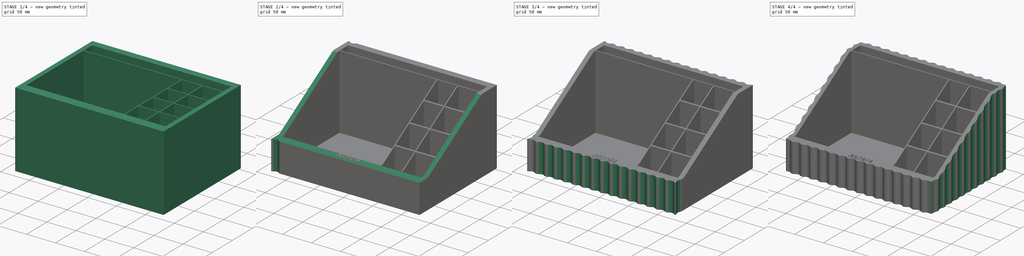
[diagram: build sequence overview — one tinted view per stage of 4, left to right]
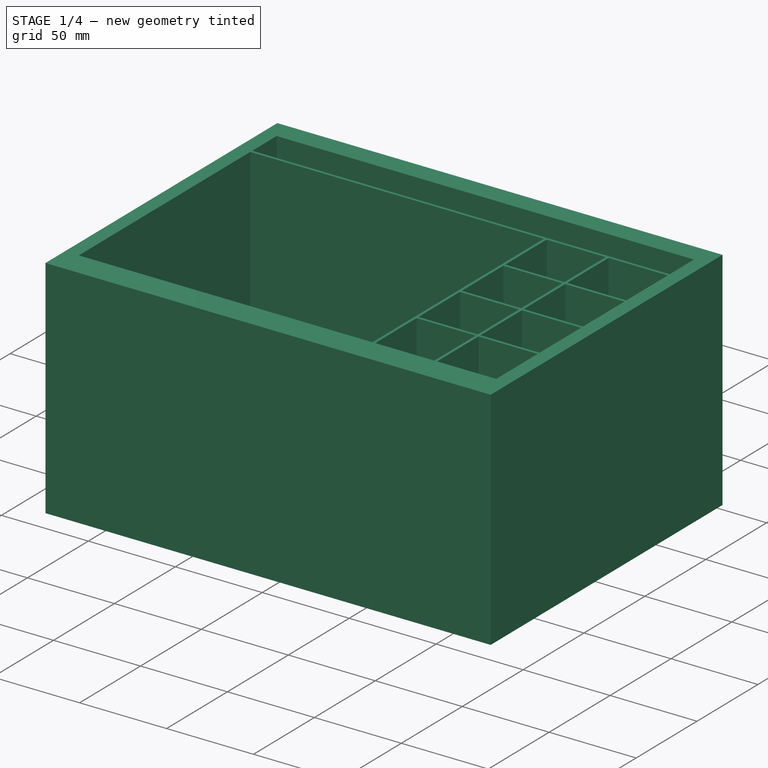
[diagram: stage 1 of 4 — iso view after this stage's code; geometry added in this stage tinted green]
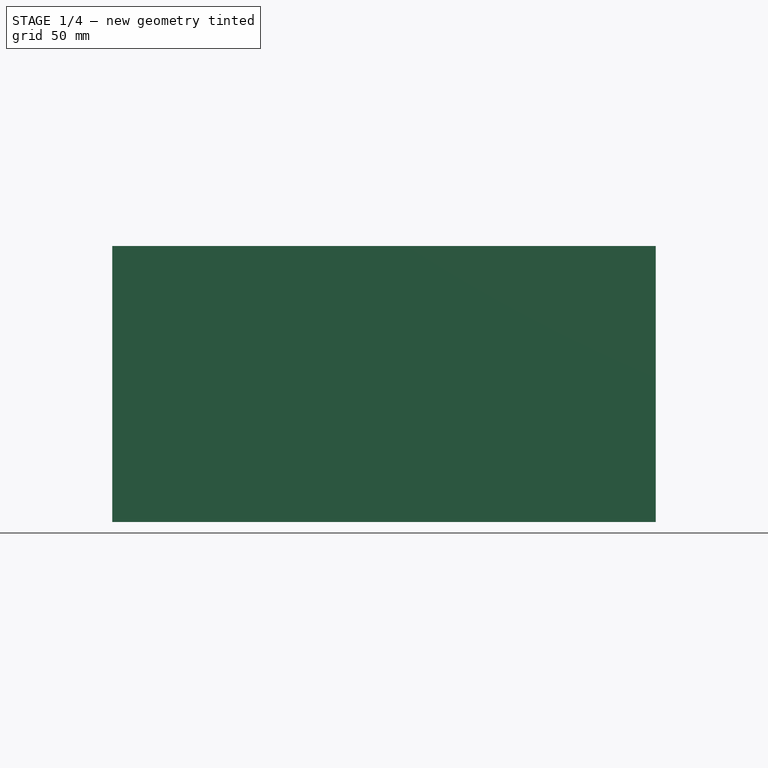
[diagram: stage 1 of 4 — front view after this stage's code; geometry added in this stage tinted green]
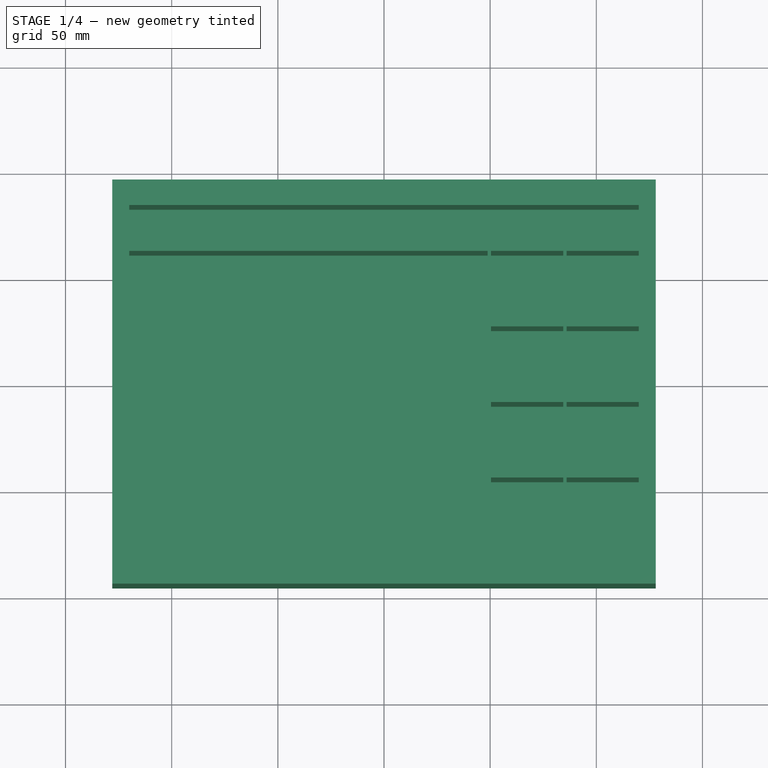
[diagram: stage 1 of 4 — top view after this stage's code; geometry added in this stage tinted green]
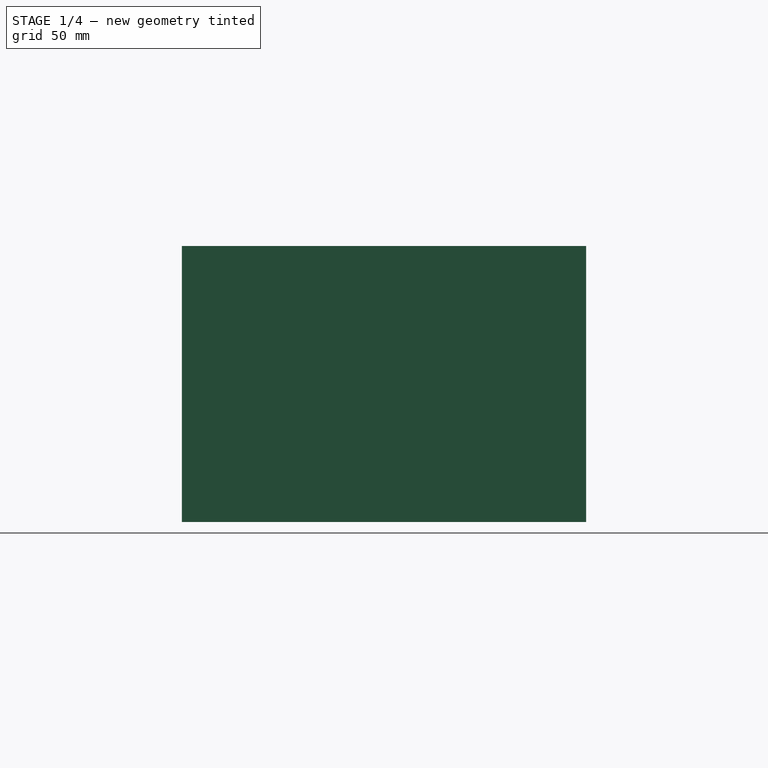
[diagram: stage 1 of 4 — right view after this stage's code; geometry added in this stage tinted green]
FCSTD DOCUMENT  (FreeCAD 1.0R39109 (Git))
Label: NovaBox
License: All rights reserved
LicenseURL: http://en.wikipedia.org/wiki/All_rights_reserved
objects: Sketcher::SketchObject×6, PartDesign::Pocket×3, PartDesign::Pad×2, PartDesign::Fillet×2, PartDesign::LinearPattern×2, App::VarSet×1, PartDesign::Body×1, Part::Part2DObjectPython×1, Part::Extrusion×1, Part::Cut×1
note: 41 computed .brp shape members not serialized (recipe doc carries the construction recipe); baked Part::Feature solids carry a one-line shape summary decoded from their .brp

FEATURE [App::VarSet] VarSet  label="Dimensions"
  BackHeight = 130
  FrontHeight = 50
  SeparatorWallThickness = 1.6
FEATURE [Sketcher::SketchObject] Sketch  label="Template_XY"
  ArcFitTolerance = 1e-06
  AttachmentSupport = -> [XY_Plane]
  FullyConstrained = true
  MakeInternals = false
  MapMode = 5
  expr: Constraints[70] = <<Dimensions>>.SeparatorWallThickness
  sketch-geometry (52):
    g0: LineSegment StartX=-120 StartY=83.2 StartZ=0 EndX=-120 EndY=63.2 EndZ=0
    g1: LineSegment StartX=-120 StartY=-79.2 StartZ=0 EndX=48.8 EndY=-79.2 EndZ=0
    g2: LineSegment StartX=120 StartY=-79.2 StartZ=0 EndX=120 EndY=-45.2 EndZ=0
    g3: LineSegment StartX=120 StartY=83.2 StartZ=0 EndX=-120 EndY=83.2 EndZ=0
    g4: LineSegment StartX=-128 StartY=95.2 StartZ=0 EndX=-128 EndY=-95.2 EndZ=0
    g5: LineSegment StartX=-128 StartY=-95.2 StartZ=0 EndX=128 EndY=-95.2 EndZ=0
    g6: LineSegment StartX=128 StartY=-95.2 StartZ=0 EndX=128 EndY=95.2 EndZ=0
    g7: LineSegment StartX=128 StartY=95.2 StartZ=0 EndX=-128 EndY=95.2 EndZ=0
    g8: LineSegment [constr] StartX=120 StartY=83.2 StartZ=0 EndX=128 EndY=83.2 EndZ=0
    g9: LineSegment [constr] StartX=-120 StartY=83.2 StartZ=0 EndX=-128 EndY=83.2 EndZ=0
    g10: LineSegment StartX=-120 StartY=63.2 StartZ=0 EndX=120 EndY=63.2 EndZ=0
    g11: LineSegment StartX=120 StartY=61.6 StartZ=0 EndX=86 EndY=61.6 EndZ=0
    g12: LineSegment StartX=86 StartY=61.6 StartZ=0 EndX=86 EndY=27.6 EndZ=0
    g13: LineSegment StartX=86 StartY=27.6 StartZ=0 EndX=120 EndY=27.6 EndZ=0
    g14: LineSegment StartX=120 StartY=26 StartZ=0 EndX=86 EndY=26 EndZ=0
    g15: LineSegment StartX=86 StartY=26 StartZ=0 EndX=86 EndY=-8 EndZ=0
    g16: LineSegment StartX=86 StartY=-8 StartZ=0 EndX=120 EndY=-8 EndZ=0
    g17: LineSegment StartX=120 StartY=-9.6 StartZ=0 EndX=86 EndY=-9.6 EndZ=0
    g18: LineSegment StartX=86 StartY=-9.6 StartZ=0 EndX=86 EndY=-43.6 EndZ=0
    g19: LineSegment StartX=86 StartY=-43.6 StartZ=0 EndX=120 EndY=-43.6 EndZ=0
    g20: LineSegment StartX=120 StartY=-45.2 StartZ=0 EndX=86 EndY=-45.2 EndZ=0
    g21: LineSegment StartX=86 StartY=-45.2 StartZ=0 EndX=86 EndY=-79.2 EndZ=0
    g22: LineSegment [constr] StartX=86 StartY=61.6 StartZ=0 EndX=86 EndY=63.2 EndZ=0
    g23: LineSegment [constr] StartX=86 StartY=27.6 StartZ=0 EndX=86 EndY=26 EndZ=0
    g24: LineSegment [constr] StartX=86 StartY=-8 StartZ=0 EndX=86 EndY=-9.6 EndZ=0
    g25: LineSegment [constr] StartX=86 StartY=-43.6 StartZ=0 EndX=86 EndY=-45.2 EndZ=0
    g26: LineSegment StartX=84.4 StartY=61.6 StartZ=0 EndX=50.4 EndY=61.6 EndZ=0
    g27: LineSegment StartX=50.4 StartY=61.6 StartZ=0 EndX=50.4 EndY=27.6 EndZ=0
    g28: LineSegment StartX=50.4 StartY=27.6 StartZ=0 EndX=84.4 EndY=27.6 EndZ=0
    g29: LineSegment StartX=84.4 StartY=27.6 StartZ=0 EndX=84.4 EndY=61.6 EndZ=0
    g30: LineSegment StartX=84.4 StartY=26 StartZ=0 EndX=50.4 EndY=26 EndZ=0
    g31: LineSegment StartX=50.4 StartY=26 StartZ=0 EndX=50.4 EndY=-8 EndZ=0
    g32: LineSegment StartX=50.4 StartY=-8 StartZ=0 EndX=84.4 EndY=-8 EndZ=0
    g33: LineSegment StartX=84.4 StartY=-8 StartZ=0 EndX=84.4 EndY=26 EndZ=0
    g34: LineSegment [constr] StartX=86 StartY=61.6 StartZ=0 EndX=84.4 EndY=61.6 EndZ=0
    g35: LineSegment StartX=84.4 StartY=-9.6 StartZ=0 EndX=50.4 EndY=-9.6 EndZ=0
    g36: LineSegment StartX=50.4 StartY=-9.6 StartZ=0 EndX=50.4 EndY=-43.6 EndZ=0
    g37: LineSegment StartX=50.4 StartY=-43.6 StartZ=0 EndX=84.4 EndY=-43.6 EndZ=0
    g38: LineSegment StartX=84.4 StartY=-43.6 StartZ=0 EndX=84.4 EndY=-9.6 EndZ=0
    g39: LineSegment StartX=84.4 StartY=-45.2 StartZ=0 EndX=50.4 EndY=-45.2 EndZ=0
    g40: LineSegment StartX=50.4 StartY=-45.2 StartZ=0 EndX=50.4 EndY=-79.2 EndZ=0
    g41: LineSegment StartX=50.4 StartY=-79.2 StartZ=0 EndX=84.4 EndY=-79.2 EndZ=0
    g42: LineSegment StartX=84.4 StartY=-79.2 StartZ=0 EndX=84.4 EndY=-45.2 EndZ=0
    g43: LineSegment StartX=48.8 StartY=61.6 StartZ=0 EndX=48.8 EndY=-79.2 EndZ=0
    g44: LineSegment [constr] StartX=50.4 StartY=61.6 StartZ=0 EndX=48.8 EndY=61.6 EndZ=0
    g45: LineSegment StartX=120 StartY=63.2 StartZ=0 EndX=120 EndY=83.2 EndZ=0
    g46: LineSegment StartX=120 StartY=27.6 StartZ=0 EndX=120 EndY=61.6 EndZ=0
    g47: LineSegment StartX=120 StartY=-8 StartZ=0 EndX=120 EndY=26 EndZ=0
    g48: LineSegment StartX=120 StartY=-43.6 StartZ=0 EndX=120 EndY=-9.6 EndZ=0
    g49: LineSegment StartX=48.8 StartY=61.6 StartZ=0 EndX=-120 EndY=61.6 EndZ=0
    g50: LineSegment StartX=-120 StartY=61.6 StartZ=0 EndX=-120 EndY=-79.2 EndZ=0
    g51: LineSegment StartX=86 StartY=-79.2 StartZ=0 EndX=120 EndY=-79.2 EndZ=0
  constraints (157):
    c: Coincident(g50,g1)
    c: Coincident(g51,g2)
    c: Coincident(g45,g3)
    c: Coincident(g3,g0)
    c: Vertical(g0)
    c: Vertical(g2)
    c: Horizontal(g1)
    c: Horizontal(g3)
    c: Coincident(g4,g5)
    c: Coincident(g5,g6)
    c: Coincident(g6,g7)
    c: Coincident(g7,g4)
    c: Vertical(g4)
    c: Vertical(g6)
    c: Horizontal(g5)
    c: Horizontal(g7)
    c: Coincident(g8,g45)
    c: PointOnObject(g8,g6)
    c: Horizontal(g8)
    c: Coincident(g9,g0)
    c: PointOnObject(g9,g4)
    c: Horizontal(g9)
    c: Equal(g8,g9)
    c: DistanceY(g9,g4) = 12
    c: DistanceX(g4,g0) = 8
    c: DistanceY(g4,g50) = 16
    c: DistanceX(g3,g3) = 240
    c: PointOnObject(g10,g45)
    c: Horizontal(g10)
    c: Horizontal(g11)
    c: Coincident(g11,g12)
    c: Vertical(g12)
    c: Coincident(g12,g13)
    c: PointOnObject(g13,g46)
    c: Horizontal(g13)
    c: Horizontal(g14)
    c: Coincident(g14,g15)
    c: Vertical(g15)
    c: Coincident(g15,g16)
    c: PointOnObject(g16,g47)
    c: Horizontal(g16)
    c: Horizontal(g17)
    c: Coincident(g17,g18)
    c: Vertical(g18)
    c: Coincident(g18,g19)
    c: Horizontal(g19)
    c: Horizontal(g20)
    c: Coincident(g20,g21)
    c: Vertical(g21)
    c: Equal(g11,g12)
    c: Equal(g12,g14)
    c: Equal(g14,g15)
    c: Equal(g15,g17)
    c: Equal(g17,g18)
    c: Equal(g18,g20)
    c: Equal(g20,g21)
    c: Coincident(g22,g11)
    c: PointOnObject(g22,g10)
    c: Vertical(g22)
    c: Coincident(g23,g12)
    c: Coincident(g23,g14)
    c: Coincident(g24,g15)
    c: Coincident(g24,g17)
    c: Coincident(g25,g18)
    c: Coincident(g25,g20)
    c: DistanceY(g10,g0) = 20
    c: PointOnObject(g19,g48)
    c: Equal(g22,g23)
    c: Equal(g23,g24)
    c: Equal(g24,g25)
    c: DistanceY(g11,g10) = 1.6
    c: DistanceY(g13,g11) = 34
    c: Coincident(g26,g27)
    c: Coincident(g27,g28)
    c: Coincident(g28,g29)
    c: Coincident(g29,g26)
    c: Horizontal(g26)
    c: Horizontal(g28)
    c: Vertical(g27)
    c: Vertical(g29)
    c: Coincident(g30,g31)
    c: Coincident(g31,g32)
    c: Coincident(g32,g33)
    c: Coincident(g33,g30)
    c: Horizontal(g30)
    c: Horizontal(g32)
    c: Vertical(g31)
    c: Vertical(g33)
    c: PointOnObject(g26,g11)
    c: PointOnObject(g30,g14)
    c: PointOnObject(g30,g29)
    c: Coincident(g34,g11)
    c: Coincident(g34,g26)
    c: Equal(g25,g34)
    c: Equal(g21,g26)
    c: Equal(g26,g27)
    c: Equal(g27,g30)
    c: Equal(g30,g31)
    c: Coincident(g35,g36)
    c: Coincident(g36,g37)
    c: Coincident(g37,g38)
    c: Coincident(g38,g35)
    c: Horizontal(g35)
    c: Horizontal(g37)
    c: Vertical(g36)
    c: Vertical(g38)
    c: Coincident(g39,g40)
    c: Coincident(g40,g41)
    c: Coincident(g41,g42)
    c: Coincident(g42,g39)
    c: Horizontal(g39)
    c: Horizontal(g41)
    c: Vertical(g40)
    c: Vertical(g42)
    c: PointOnObject(g35,g33)
    c: PointOnObject(g35,g17)
    c: PointOnObject(g39,g38)
    c: PointOnObject(g39,g20)
    c: Equal(g31,g35)
    c: Equal(g35,g36)
    c: Equal(g36,g39)
    c: Vertical(g43)
    c: Coincident(g44,g26)
    c: Horizontal(g44)
    c: Equal(g34,g44)
    c: Coincident(g46,g11)
    c: PointOnObject(g45,g10)
    c: Coincident(g47,g14)
    c: PointOnObject(g46,g13)
    c: Coincident(g48,g17)
    c: PointOnObject(g47,g16)
    c: Coincident(g2,g20)
    c: PointOnObject(g48,g19)
    c: Vertical(g48)
    c: Vertical(g47)
    c: Vertical(g46)
    c: PointOnObject(g11,g45)
    c: PointOnObject(g14,g46)
    c: PointOnObject(g17,g47)
    c: PointOnObject(g2,g48)
    c: Symmetric(g4,g6,g-1)
    c: Vertical(g45)
    c: Coincident(g49,g44)
    c: PointOnObject(g49,g50)
    c: Horizontal(g49)
    c: Coincident(g0,g10)
    c: PointOnObject(g50,g49)
    c: Vertical(g50)
    c: PointOnObject(g49,g0)
    c: Coincident(g43,g44)
    c: Coincident(g1,g43)
    c: Horizontal(g51)
    c: Coincident(g21,g51)
    c: PointOnObject(g40,g1)
    c: PointOnObject(g21,g41)
    c: DistanceX(g7,g7) = 256  'Width'
    c: DistanceY(g4,g4) = 190.4  'Length'
FEATURE [Sketcher::SketchObject] Sketch001  label="Base"
  ArcFitTolerance = 1e-06
  AttachmentSupport = -> [XY_Plane]
  ExternalGeometry = -> [Sketch]
  FullyConstrained = true
  MakeInternals = false
  MapMode = 5
  sketch-geometry (4):
    g0: LineSegment StartX=-128 StartY=95.2 StartZ=0 EndX=-128 EndY=-95.2 EndZ=0
    g1: LineSegment StartX=-128 StartY=-95.2 StartZ=0 EndX=128 EndY=-95.2 EndZ=0
    g2: LineSegment StartX=128 StartY=-95.2 StartZ=0 EndX=128 EndY=95.2 EndZ=0
    g3: LineSegment StartX=128 StartY=95.2 StartZ=0 EndX=-128 EndY=95.2 EndZ=0
  constraints (8):
    c: Coincident(g0,g1)
    c: Coincident(g1,g2)
    c: Coincident(g2,g3)
    c: Coincident(g3,g0)
    c: Coincident(g0,g-3)
    c: Coincident(g1,g-4)
    c: Coincident(g2,g-3)
    c: Coincident(g0,g-4)
FEATURE [PartDesign::Pad] Pad  label="Base_"
  Direction = (0,0,1)
  Length = 2
  Length2 = 10
  Profile = -> Sketch001
  ReferenceAxis = -> Sketch001 [N_Axis]
  Suppressed = false
  Type = 0
FEATURE [Sketcher::SketchObject] Sketch002  label="Walls"
  ArcFitTolerance = 1e-06
  AttachmentOffset = pos=(0,0,2) rot=(0,0,1;0rad)
  AttachmentSupport = -> [XY_Plane]
  ExternalGeometry = -> [Sketch]
  FullyConstrained = true
  MakeInternals = false
  MapMode = 5
  Placement = pos=(0,0,2) rot=(0,0,1;0rad)
  expr: .AttachmentOffset.Base.z = <<Base_>>.Length
  sketch-geometry (44):
    g0: LineSegment StartX=-128 StartY=95.2 StartZ=0 EndX=-128 EndY=-95.2 EndZ=0
    g1: LineSegment StartX=-128 StartY=-95.2 StartZ=0 EndX=128 EndY=-95.2 EndZ=0
    g2: LineSegment StartX=128 StartY=-95.2 StartZ=0 EndX=128 EndY=95.2 EndZ=0
    g3: LineSegment StartX=128 StartY=95.2 StartZ=0 EndX=-128 EndY=95.2 EndZ=0
    g4: LineSegment StartX=-120 StartY=83.2 StartZ=0 EndX=-120 EndY=63.2 EndZ=0
    g5: LineSegment StartX=-120 StartY=63.2 StartZ=0 EndX=120 EndY=63.2 EndZ=0
    g6: LineSegment StartX=120 StartY=63.2 StartZ=0 EndX=120 EndY=83.2 EndZ=0
    g7: LineSegment StartX=120 StartY=83.2 StartZ=0 EndX=-120 EndY=83.2 EndZ=0
    g8: LineSegment StartX=-120 StartY=61.6 StartZ=0 EndX=-120 EndY=-79.2 EndZ=0
    g9: LineSegment StartX=-120 StartY=-79.2 StartZ=0 EndX=48.8 EndY=-79.2 EndZ=0
    g10: LineSegment StartX=48.8 StartY=-79.2 StartZ=0 EndX=48.8 EndY=61.6 EndZ=0
    g11: LineSegment StartX=48.8 StartY=61.6 StartZ=0 EndX=-120 EndY=61.6 EndZ=0
    g12: LineSegment StartX=50.4 StartY=61.6 StartZ=0 EndX=50.4 EndY=27.6 EndZ=0
    g13: LineSegment StartX=50.4 StartY=27.6 StartZ=0 EndX=84.4 EndY=27.6 EndZ=0
    g14: LineSegment StartX=84.4 StartY=27.6 StartZ=0 EndX=84.4 EndY=61.6 EndZ=0
    g15: LineSegment StartX=84.4 StartY=61.6 StartZ=0 EndX=50.4 EndY=61.6 EndZ=0
    g16: LineSegment StartX=86 StartY=61.6 StartZ=0 EndX=86 EndY=27.6 EndZ=0
    g17: LineSegment StartX=86 StartY=27.6 StartZ=0 EndX=120 EndY=27.6 EndZ=0
    g18: LineSegment StartX=120 StartY=27.6 StartZ=0 EndX=120 EndY=61.6 EndZ=0
    g19: LineSegment StartX=120 StartY=61.6 StartZ=0 EndX=86 EndY=61.6 EndZ=0
    g20: LineSegment StartX=50.4 StartY=26 StartZ=0 EndX=50.4 EndY=-8 EndZ=0
    g21: LineSegment StartX=50.4 StartY=-8 StartZ=0 EndX=84.4 EndY=-8 EndZ=0
    g22: LineSegment StartX=84.4 StartY=-8 StartZ=0 EndX=84.4 EndY=26 EndZ=0
    g23: LineSegment StartX=84.4 StartY=26 StartZ=0 EndX=50.4 EndY=26 EndZ=0
    g24: LineSegment StartX=86 StartY=26 StartZ=0 EndX=86 EndY=-8 EndZ=0
    g25: LineSegment StartX=86 StartY=-8 StartZ=0 EndX=120 EndY=-8 EndZ=0
    g26: LineSegment StartX=120 StartY=-8 StartZ=0 EndX=120 EndY=26 EndZ=0
    g27: LineSegment StartX=120 StartY=26 StartZ=0 EndX=86 EndY=26 EndZ=0
    g28: LineSegment StartX=50.4 StartY=-9.6 StartZ=0 EndX=50.4 EndY=-43.6 EndZ=0
    g29: LineSegment StartX=50.4 StartY=-43.6 StartZ=0 EndX=84.4 EndY=-43.6 EndZ=0
    g30: LineSegment StartX=84.4 StartY=-43.6 StartZ=0 EndX=84.4 EndY=-9.6 EndZ=0
    g31: LineSegment StartX=84.4 StartY=-9.6 StartZ=0 EndX=50.4 EndY=-9.6 EndZ=0
    g32: LineSegment StartX=86 StartY=-9.6 StartZ=0 EndX=86 EndY=-43.6 EndZ=0
    g33: LineSegment StartX=86 StartY=-43.6 StartZ=0 EndX=120 EndY=-43.6 EndZ=0
    g34: LineSegment StartX=120 StartY=-43.6 StartZ=0 EndX=120 EndY=-9.6 EndZ=0
    g35: LineSegment StartX=120 StartY=-9.6 StartZ=0 EndX=86 EndY=-9.6 EndZ=0
    g36: LineSegment StartX=50.4 StartY=-45.2 StartZ=0 EndX=50.4 EndY=-79.2 EndZ=0
    g37: LineSegment StartX=50.4 StartY=-79.2 StartZ=0 EndX=84.4 EndY=-79.2 EndZ=0
    g38: LineSegment StartX=84.4 StartY=-79.2 StartZ=0 EndX=84.4 EndY=-45.2 EndZ=0
    g39: LineSegment StartX=84.4 StartY=-45.2 StartZ=0 EndX=50.4 EndY=-45.2 EndZ=0
    g40: LineSegment StartX=86 StartY=-45.2 StartZ=0 EndX=86 EndY=-79.2 EndZ=0
    g41: LineSegment StartX=86 StartY=-79.2 StartZ=0 EndX=120 EndY=-79.2 EndZ=0
    g42: LineSegment StartX=120 StartY=-79.2 StartZ=0 EndX=120 EndY=-45.2 EndZ=0
    g43: LineSegment StartX=120 StartY=-45.2 StartZ=0 EndX=86 EndY=-45.2 EndZ=0
  constraints (90):
    c: Coincident(g0,g1)
    c: Coincident(g1,g2)
    c: Coincident(g2,g3)
    c: Coincident(g3,g0)
    c: Vertical(g0)
    c: Vertical(g2)
    c: Horizontal(g1)
    c: Horizontal(g3)
    c: Coincident(g0,g-3)
    c: Coincident(g1,g-4)
    c: Coincident(g4,g5)
    c: Coincident(g5,g6)
    c: Coincident(g6,g7)
    c: Coincident(g7,g4)
    c: Coincident(g4,g-6)
    c: Coincident(g5,g-5)
    c: Coincident(g8,g9)
    c: Coincident(g9,g10)
    c: Coincident(g10,g11)
    c: Coincident(g11,g8)
    c: Coincident(g8,g-7)
    c: Coincident(g9,g-8)
    c: Coincident(g12,g13)
    c: Coincident(g13,g14)
    c: Coincident(g14,g15)
    c: Coincident(g15,g12)
    c: Coincident(g12,g-9)
    c: Coincident(g13,g-10)
    c: Coincident(g16,g17)
    c: Coincident(g17,g18)
    c: Coincident(g18,g19)
    c: Coincident(g19,g16)
    c: Coincident(g16,g-11)
    c: Coincident(g17,g-12)
    c: Coincident(g20,g21)
    c: Coincident(g21,g22)
    c: Coincident(g22,g23)
    c: Coincident(g23,g20)
    c: Coincident(g20,g-13)
    c: Coincident(g21,g-14)
    c: Coincident(g24,g25)
    c: Coincident(g25,g26)
    c: Coincident(g26,g27)
    c: Coincident(g27,g24)
    c: Coincident(g24,g-15)
    c: Coincident(g25,g-16)
    c: Coincident(g28,g29)
    c: Coincident(g29,g30)
    c: Coincident(g30,g31)
    c: Coincident(g31,g28)
    c: Coincident(g28,g-20)
    c: Coincident(g29,g-19)
    c: Coincident(g32,g33)
    c: Coincident(g33,g34)
    c: Coincident(g34,g35)
    c: Coincident(g35,g32)
    c: Coincident(g32,g-18)
    c: Coincident(g33,g-17)
    c: Coincident(g36,g37)
    c: Coincident(g37,g38)
    c: Coincident(g38,g39)
    c: Coincident(g39,g36)
    c: Coincident(g36,g-21)
    c: Coincident(g37,g-22)
    c: Coincident(g40,g41)
    c: Coincident(g41,g42)
    c: Coincident(g42,g43)
    c: Coincident(g43,g40)
    c: Coincident(g40,g-23)
    c: Coincident(g41,g-24)
    c: Coincident(g10,g-8)
    c: Coincident(g14,g-10)
    c: Coincident(g6,g-5)
    c: Coincident(g18,g-12)
    c: Coincident(g12,g-9)
    c: Coincident(g16,g-11)
    c: Coincident(g22,g-14)
    c: Coincident(g26,g-16)
    c: Coincident(g20,g-13)
    c: Coincident(g24,g-15)
    c: Coincident(g30,g-19)
    c: Coincident(g34,g-17)
    c: Coincident(g28,g-20)
    c: Coincident(g32,g-18)
    c: Coincident(g38,g-22)
    c: Coincident(g42,g-24)
    c: Coincident(g36,g-21)
    c: Coincident(g40,g-23)
    c: Coincident(g8,g-7)
    c: Coincident(g4,g-6)
FEATURE [PartDesign::Pad] Pad001  label="Walls_"
  BaseFeature = -> Pad
  Direction = (0,0,1)
  Length = 128
  Length2 = 10
  Profile = -> Sketch002
  ReferenceAxis = -> Sketch002 [N_Axis]
  Refine = true
  Suppressed = false
  Type = 0
  expr: Length = <<Dimensions>>.BackHeight - <<Base_>>.Length
FEATURE [PartDesign::Body] Body
  AllowCompound = false
  Group = -> [Sketch,Sketch001,Pad,Sketch002,Pad001,Sketch003,Pocket,Fillet,Sketch004,Pocket001,LinearPattern,Sketch005,Pocket002,LinearPattern001,Fillet001]
  Origin = -> Origin
  Tip = -> Fillet001
FEATURE [Part::Part2DObjectPython] ShapeString  # Draft 2D object (typed FeaturePython)
  FontFile = <path>
  Fuse = false
  Justification = 6
  JustificationReference = 0
  KeepLeftMargin = false
  MakeFace = true
  ObliqueAngle = 0
  Placement = pos=(-20.5,-90.75,50) rot=(0,0,1;0rad)
  ScaleToSize = true
  Size = 10
  String = NOVA
  Tracking = 0
  expr: .Placement.Base.z = <<Dimensions>>.FrontHeight
FEATURE [Part::Extrusion] Extrude
  Base = -> ShapeString
  Dir = (0,0,1)
  DirMode = 2
  FaceMakerClass = Part::FaceMakerBullseye
  FaceMakerMode = 3
  LengthFwd = 1
  LengthRev = 2
  Solid = false
  Symmetric = false
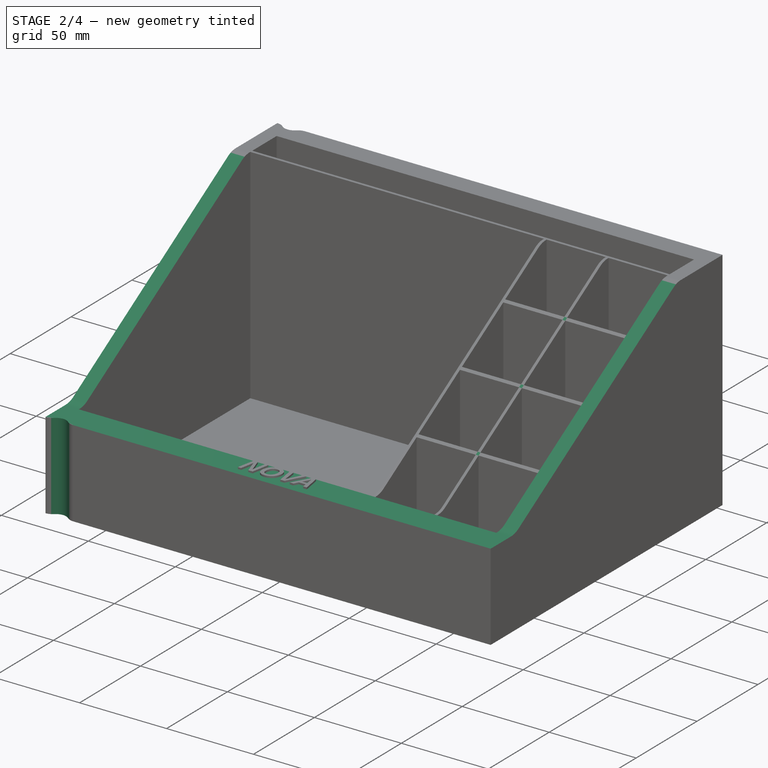
[diagram: stage 2 of 4 — iso view after this stage's code; geometry added in this stage tinted green]
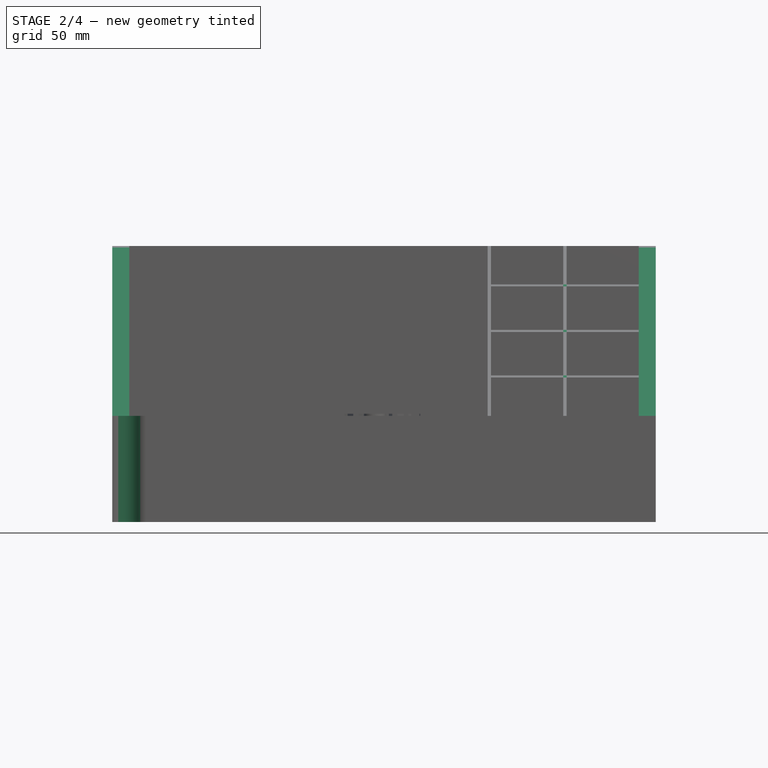
[diagram: stage 2 of 4 — front view after this stage's code; geometry added in this stage tinted green]
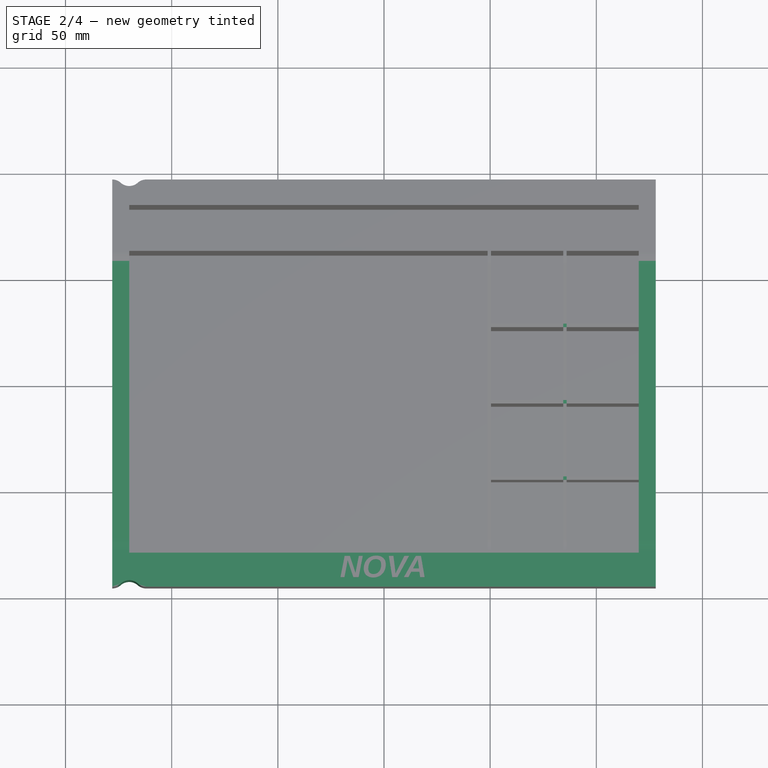
[diagram: stage 2 of 4 — top view after this stage's code; geometry added in this stage tinted green]
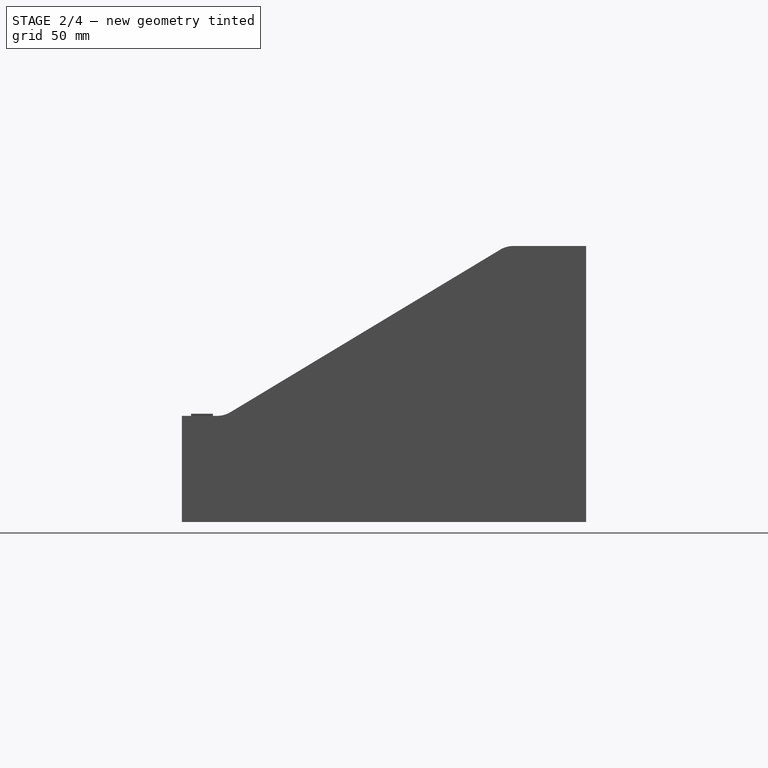
[diagram: stage 2 of 4 — right view after this stage's code; geometry added in this stage tinted green]
FEATURE [Sketcher::SketchObject] Sketch003
  ArcFitTolerance = 1e-06
  AttachmentSupport = -> [YZ_Plane]
  ExternalGeometry = -> [Sketch]
  FullyConstrained = true
  MakeInternals = false
  MapMode = 5
  Placement = pos=(0,0,0) rot=(0.57735,0.57735,0.57735;2.0944rad)
  expr: Constraints[13] = <<Base_>>.Length + <<Walls_>>.Length
  expr: Constraints[23] = <<Dimensions>>.FrontHeight
  sketch-geometry (9):
    g0: LineSegment StartX=57.6 StartY=130 StartZ=0 EndX=-75.2 EndY=50 EndZ=0
    g1: LineSegment StartX=-95.2 StartY=50 StartZ=0 EndX=-95.2 EndY=130 EndZ=0
    g2: LineSegment StartX=-95.2 StartY=130 StartZ=0 EndX=57.6 EndY=130 EndZ=0
    g3: LineSegment [constr] StartX=61.6 StartY=130 StartZ=0 EndX=61.6 EndY=0 EndZ=0
    g4: LineSegment [constr] StartX=-95.2 StartY=50 StartZ=0 EndX=-95.2 EndY=0 EndZ=0
    g5: LineSegment [constr] StartX=-79.2 StartY=50 StartZ=0 EndX=-79.2 EndY=0 EndZ=0
    g6: LineSegment StartX=-75.2 StartY=50 StartZ=0 EndX=-79.2 EndY=50 EndZ=0
    g7: LineSegment StartX=-79.2 StartY=50 StartZ=0 EndX=-95.2 EndY=50 EndZ=0
    g8: LineSegment [constr] StartX=61.6 StartY=130 StartZ=0 EndX=57.6 EndY=130 EndZ=0
  constraints (25):
    c: Coincident(g0,g6)
    c: Coincident(g7,g1)
    c: Vertical(g1)
    c: Coincident(g1,g2)
    c: Coincident(g2,g0)
    c: Horizontal(g2)
    c: Coincident(g3,g-3)
    c: Vertical(g3)
    c: Coincident(g4,g7)
    c: Coincident(g4,g-5)
    c: Vertical(g4)
    c: Coincident(g5,g-4)
    c: Vertical(g5)
    c: DistanceY(g3,g3) = 130
    c: PointOnObject(g3,g2)
    c: DistanceX(g0,g3) = 4  'Offset'
    c: Coincident(g6,g7)
    c: Horizontal(g6)
    c: Horizontal(g7)
    c: Coincident(g5,g6)
    c: Coincident(g8,g3)
    c: Coincident(g8,g0)
    c: Equal(g8,g6)
    c: DistanceY(g4,g4) = 50
    c: DistanceY(g1,g1) = 80  'Slope'
FEATURE [PartDesign::Pocket] Pocket
  BaseFeature = -> Pad001
  Direction = (-1,0,0)
  Length = 5
  Length2 = 5
  Midplane = true
  Profile = -> Sketch003
  ReferenceAxis = -> Sketch003 [N_Axis]
  Refine = true
  Suppressed = false
  Type = 1
FEATURE [PartDesign::Fillet] Fillet
  Base = -> Pocket [Edge29,Edge25,Edge21,Edge17,Edge36,Edge40,Edge44,Edge35]
  BaseFeature = -> Pocket
  Radius = 12
  SupportTransform = false
  Suppressed = false
  UseAllEdges = false
  expr: Radius = <<Sketch003>>.Constraints.Offset * 3
FEATURE [Sketcher::SketchObject] Sketch004
  ArcFitTolerance = 1e-06
  AttachmentSupport = -> [XY_Plane]
  ExternalGeometry = -> [Sketch]
  FullyConstrained = true
  MakeInternals = false
  MapMode = 5
  expr: Constraints[7] = <<Template_XY>>.Constraints.Width / 16
  sketch-geometry (12):
    g0: ArcOfCircle CenterX=-128 CenterY=-89.2 CenterZ=0 NormalX=0 NormalY=0 NormalZ=1 AngleXU=0 Radius=6 StartAngle=4.71239 EndAngle=5.44212
    g1: ArcOfCircle CenterX=-120 CenterY=-98.1443 CenterZ=0 NormalX=0 NormalY=0 NormalZ=1 AngleXU=0 Radius=6 StartAngle=0.841069 EndAngle=2.30052
    g2: ArcOfCircle CenterX=-112 CenterY=-89.2 CenterZ=0 NormalX=0 NormalY=0 NormalZ=1 AngleXU=0 Radius=6 StartAngle=3.98266 EndAngle=4.71239
    g3: LineSegment StartX=-128 StartY=-95.2 StartZ=0 EndX=-128 EndY=-96.2 EndZ=0
    g4: LineSegment StartX=-112 StartY=-95.2 StartZ=0 EndX=-112 EndY=-96.2 EndZ=0
    g5: LineSegment StartX=-112 StartY=-96.2 StartZ=0 EndX=-128 EndY=-96.2 EndZ=0
    g6: ArcOfCircle CenterX=-128 CenterY=89.2 CenterZ=0 NormalX=0 NormalY=0 NormalZ=1 AngleXU=0 Radius=6 StartAngle=0.841069 EndAngle=1.5708
    g7: ArcOfCircle CenterX=-120 CenterY=98.1443 CenterZ=0 NormalX=0 NormalY=0 NormalZ=1 AngleXU=0 Radius=6 StartAngle=3.98266 EndAngle=5.44212
    g8: ArcOfCircle CenterX=-112 CenterY=89.2 CenterZ=0 NormalX=0 NormalY=0 NormalZ=1 AngleXU=0 Radius=6 StartAngle=1.5708 EndAngle=2.30052
    g9: LineSegment StartX=-128 StartY=95.2 StartZ=0 EndX=-128 EndY=96.2 EndZ=0
    g10: LineSegment StartX=-112 StartY=95.2 StartZ=0 EndX=-112 EndY=96.2 EndZ=0
    g11: LineSegment StartX=-112 StartY=96.2 StartZ=0 EndX=-128 EndY=96.2 EndZ=0
  constraints (33):
    c: Tangent(g0,g-3) = -1.5708
    c: Tangent(g2,g-3) = -1.5708
    c: Tangent(g1,g2) = 1.5708
    c: Tangent(g0,g1) = 1.5708
    c: Equal(g0,g1)
    c: Equal(g1,g2)
    c: DistanceX(g-3,g-3) = 256  'Width'
    c: DistanceX(g0,g2) = 16
    c: Radius(g1) = 6
    c: Coincident(g3,g0)
    c: Vertical(g3)
    c: Coincident(g4,g2)
    c: Vertical(g4)
    c: Coincident(g5,g4)
    c: Coincident(g5,g3)
    c: Horizontal(g5)
    c: DistanceY(g3,g3) = 1
    c: Tangent(g6,g7) = 1.5708
    c: Tangent(g7,g8) = 1.5708
    c: Tangent(g6,g-5) = -1.5708
    c: Tangent(g8,g-5) = -1.5708
    c: Equal(g6,g7)
    c: Equal(g7,g8)
    c: Equal(g8,g2)
    c: PointOnObject(g8,g4)
    c: Coincident(g9,g6)
    c: Vertical(g9)
    c: Coincident(g10,g8)
    c: Vertical(g10)
    c: Coincident(g11,g10)
    c: Coincident(g11,g9)
    c: Horizontal(g11)
    c: Equal(g10,g4)
FEATURE [PartDesign::Pocket] Pocket001
  BaseFeature = -> Fillet
  Direction = (0,0,-1)
  Length = 5
  Length2 = 5
  Profile = -> Sketch004
  ReferenceAxis = -> Sketch004 [N_Axis]
  Reversed = true
  Suppressed = false
  Type = 1
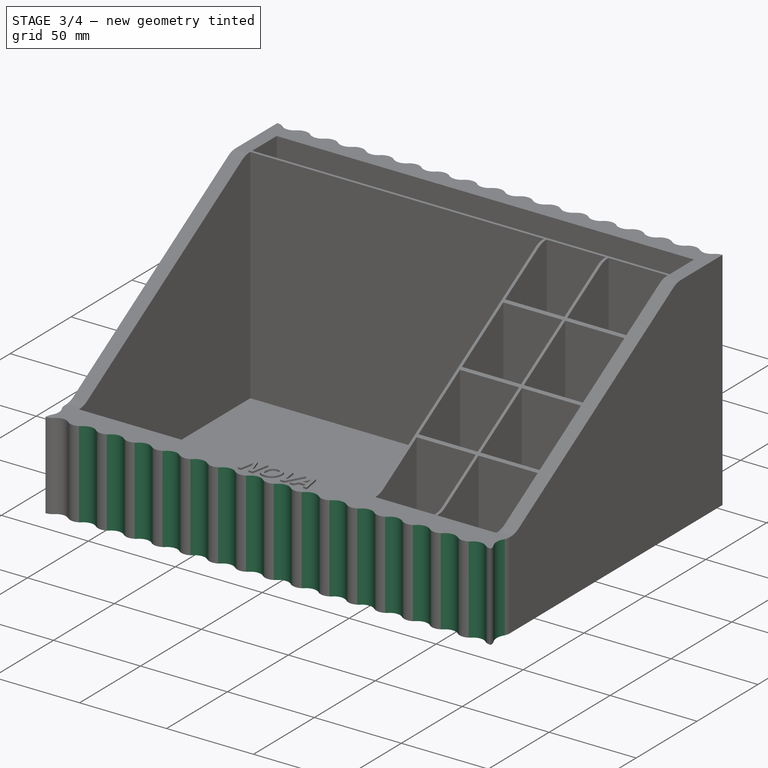
[diagram: stage 3 of 4 — iso view after this stage's code; geometry added in this stage tinted green]
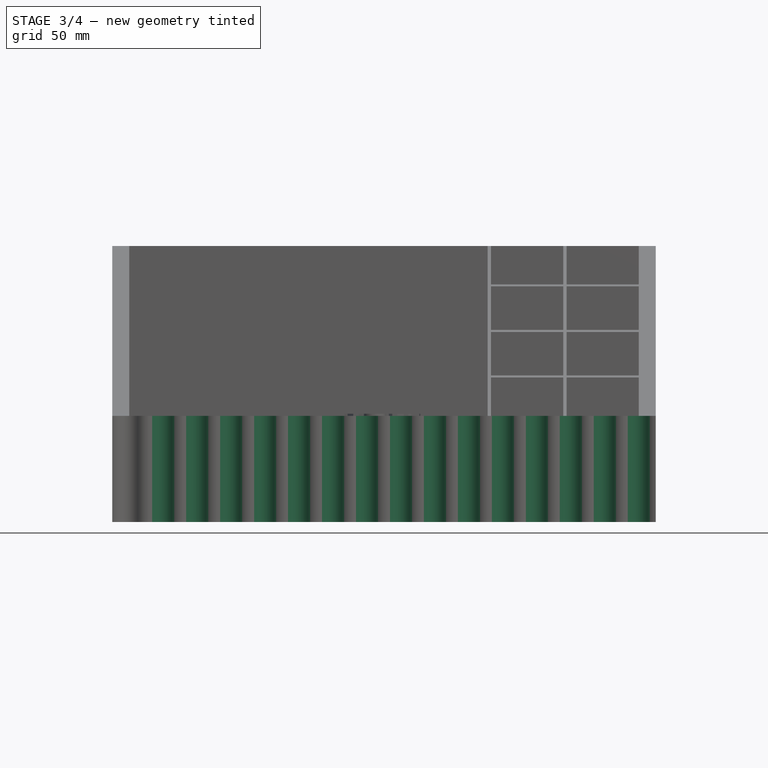
[diagram: stage 3 of 4 — front view after this stage's code; geometry added in this stage tinted green]
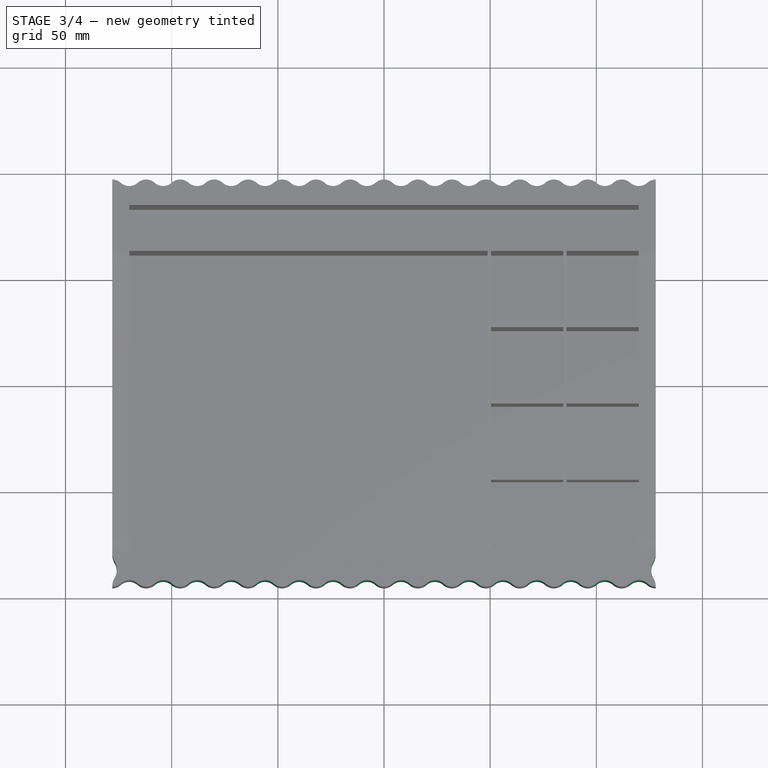
[diagram: stage 3 of 4 — top view after this stage's code; geometry added in this stage tinted green]
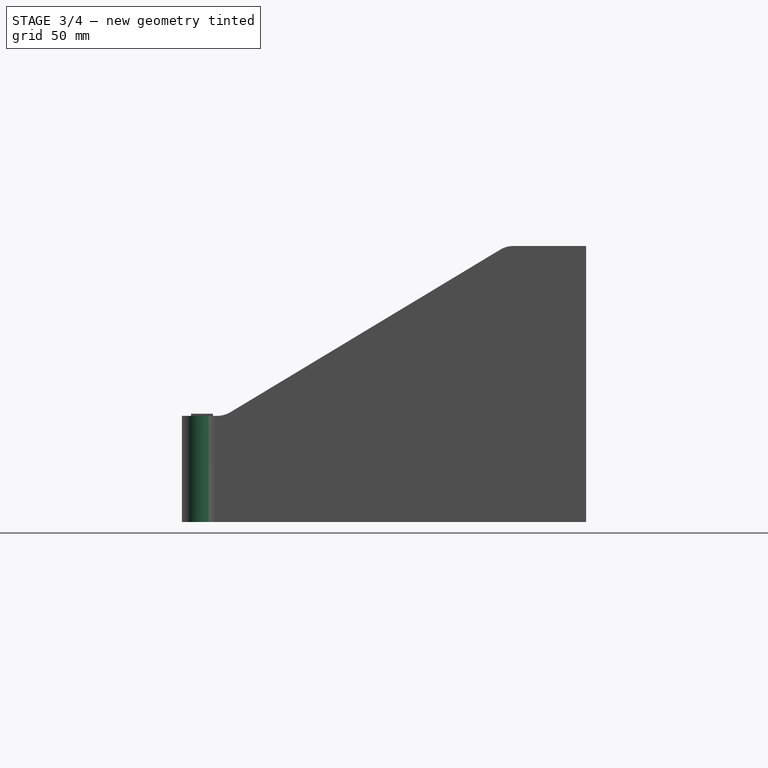
[diagram: stage 3 of 4 — right view after this stage's code; geometry added in this stage tinted green]
FEATURE [PartDesign::LinearPattern] LinearPattern
  BaseFeature = -> Pocket001
  Direction = -> Sketch004 [H_Axis]
  Length = 240
  Mode = 0
  Occurrences = 16
  Offset = 16
  Originals = -> [Pocket001]
  Suppressed = false
  TransformMode = 0
  expr: Length = <<Template_XY>>.Constraints.Width / 16 * 15
FEATURE [Sketcher::SketchObject] Sketch005
  ArcFitTolerance = 1e-06
  AttachmentSupport = -> [XY_Plane]
  ExternalGeometry = -> [Sketch]
  FullyConstrained = true
  MakeInternals = false
  MapMode = 5
  expr: Constraints[15] = <<Template_XY>>.Constraints.Length / 12
  sketch-geometry (12):
    g0: ArcOfCircle CenterX=-120 CenterY=-95.2 CenterZ=0 NormalX=0 NormalY=0 NormalZ=1 AngleXU=0 Radius=8 StartAngle=2.6228 EndAngle=3.14159
    g1: ArcOfCircle CenterX=-133.895 CenterY=-87.2667 CenterZ=0 NormalX=0 NormalY=0 NormalZ=1 AngleXU=0 Radius=8 StartAngle=5.76439 EndAngle=6.80198
    g2: ArcOfCircle CenterX=-120 CenterY=-79.3333 CenterZ=0 NormalX=0 NormalY=0 NormalZ=1 AngleXU=0 Radius=8 StartAngle=3.14159 EndAngle=3.66039
    g3: LineSegment StartX=-128 StartY=-79.3333 StartZ=0 EndX=-129 EndY=-79.3333 EndZ=0
    g4: LineSegment StartX=-128 StartY=-95.2 StartZ=0 EndX=-129 EndY=-95.2 EndZ=0
    g5: LineSegment StartX=-129 StartY=-95.2 StartZ=0 EndX=-129 EndY=-79.3333 EndZ=0
    g6: ArcOfCircle CenterX=120 CenterY=-95.2 CenterZ=0 NormalX=0 NormalY=0 NormalZ=1 AngleXU=0 Radius=8 StartAngle=-9e-16 EndAngle=0.518794
    g7: ArcOfCircle CenterX=133.895 CenterY=-87.2667 CenterZ=0 NormalX=0 NormalY=0 NormalZ=1 AngleXU=0 Radius=8 StartAngle=2.6228 EndAngle=3.66039
    g8: ArcOfCircle CenterX=120 CenterY=-79.3333 CenterZ=0 NormalX=0 NormalY=0 NormalZ=1 AngleXU=0 Radius=8 StartAngle=5.76439 EndAngle=6.28319
    g9: LineSegment StartX=128 StartY=-79.3333 StartZ=0 EndX=129 EndY=-79.3333 EndZ=0
    g10: LineSegment StartX=128 StartY=-95.2 StartZ=0 EndX=129 EndY=-95.2 EndZ=0
    g11: LineSegment StartX=129 StartY=-79.3333 StartZ=0 EndX=129 EndY=-95.2 EndZ=0
  constraints (32):
    c: Equal(g1,g0)
    c: Equal(g0,g2)
    c: Tangent(g1,g2) = 1.5708
    c: Tangent(g0,g1) = 1.5708
    c: Tangent(g0,g-3) = -1.5708
    c: Tangent(g2,g-3) = -1.5708
    c: Radius(g1) = 8
    c: Coincident(g3,g2)
    c: Horizontal(g3)
    c: Coincident(g4,g0)
    c: Horizontal(g4)
    c: Coincident(g5,g4)
    c: Coincident(g5,g3)
    c: Vertical(g5)
    c: DistanceX(g3,g3) = 1
    c: DistanceY(g5,g5) = 15.8667
    c: Equal(g6,g7)
    c: Equal(g7,g8)
    c: Equal(g8,g2)
    c: Tangent(g6,g-4) = -1.5708
    c: Tangent(g8,g-4) = -1.5708
    c: Tangent(g7,g8) = 1.5708
    c: Tangent(g6,g7) = 1.5708
    c: PointOnObject(g8,g3)
    c: Coincident(g9,g8)
    c: Horizontal(g9)
    c: Coincident(g10,g6)
    c: Horizontal(g10)
    c: Coincident(g11,g9)
    c: Coincident(g11,g10)
    c: Vertical(g11)
    c: Equal(g9,g3)
FEATURE [PartDesign::Pocket] Pocket002
  BaseFeature = -> LinearPattern
  Direction = (0,0,-1)
  Length = 5
  Length2 = 5
  Profile = -> Sketch005
  ReferenceAxis = -> Sketch005 [N_Axis]
  Reversed = true
  Suppressed = false
  Type = 1
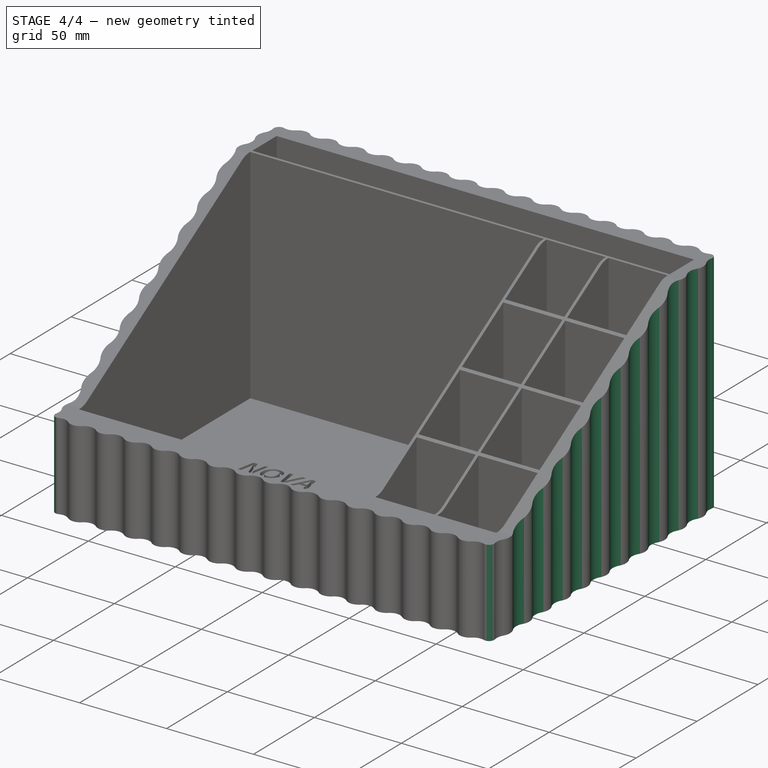
[diagram: stage 4 of 4 — iso view after this stage's code; geometry added in this stage tinted green]
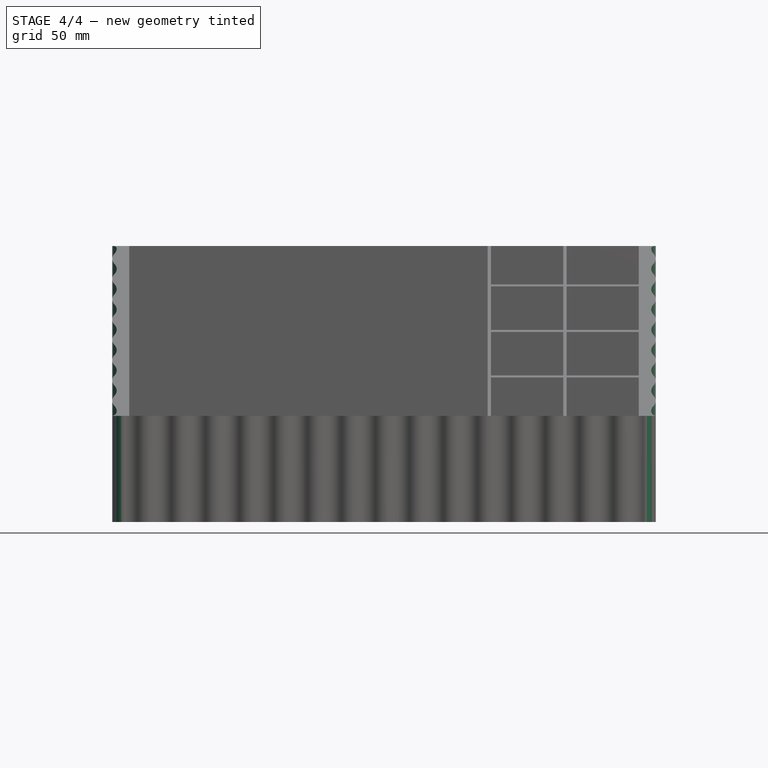
[diagram: stage 4 of 4 — front view after this stage's code; geometry added in this stage tinted green]
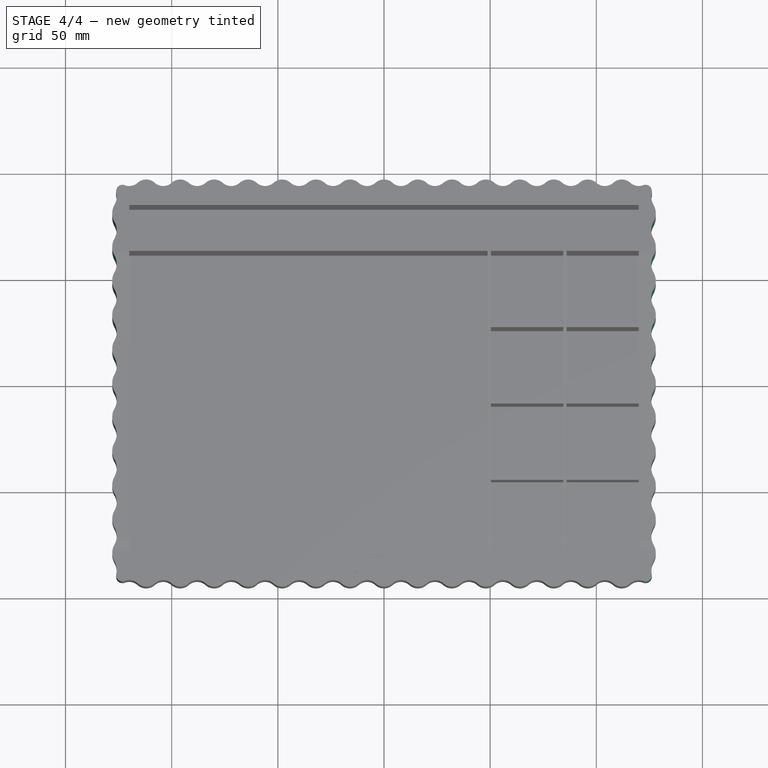
[diagram: stage 4 of 4 — top view after this stage's code; geometry added in this stage tinted green]
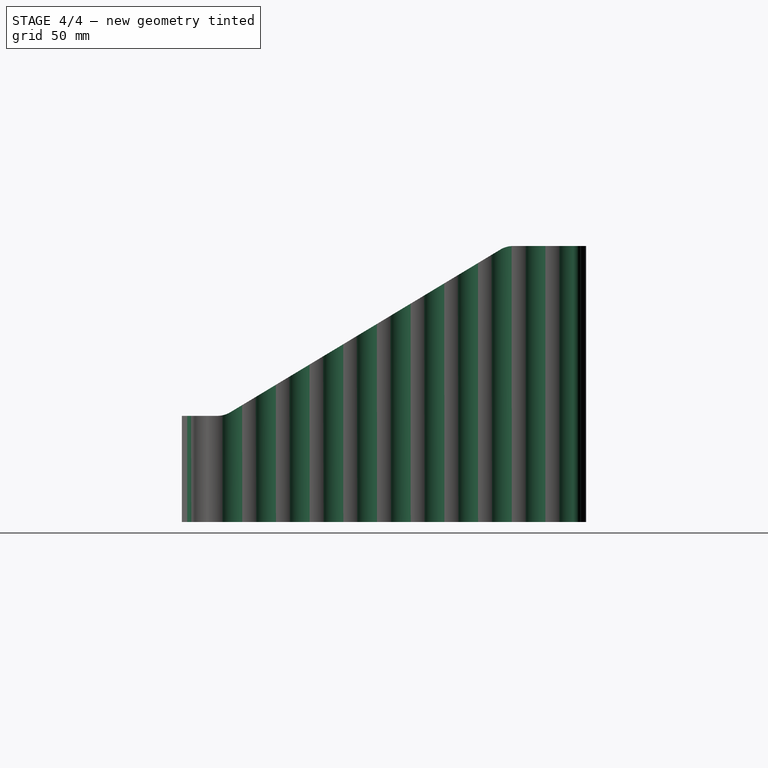
[diagram: stage 4 of 4 — right view after this stage's code; geometry added in this stage tinted green]
FEATURE [PartDesign::LinearPattern] LinearPattern001
  BaseFeature = -> Pocket002
  Direction = -> Sketch005 [V_Axis]
  Length = 174.533
  Mode = 0
  Occurrences = 12
  Offset = 15.8667
  Originals = -> [Pocket002]
  Suppressed = false
  TransformMode = 0
  expr: Length = <<Template_XY>>.Constraints.Length / 12 * 11
FEATURE [PartDesign::Fillet] Fillet001
  Base = -> LinearPattern001 [Edge530,Edge464,Edge368,Edge299]
  BaseFeature = -> LinearPattern001
  Radius = 3
  SupportTransform = false
  Suppressed = false
  UseAllEdges = false
FEATURE [Part::Cut] Cut
  Base = -> Body
  Tool = -> Extrude
note: 1 file-system path scrubbed to <path> (originals preserved in the JSON sidecar)
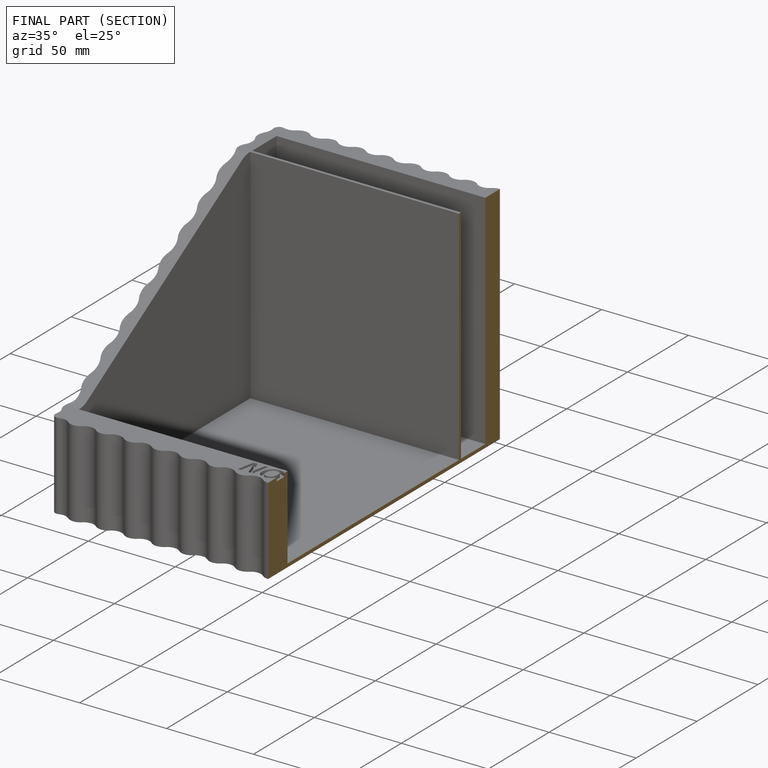
[diagram: finished part — half-section view (interior)]
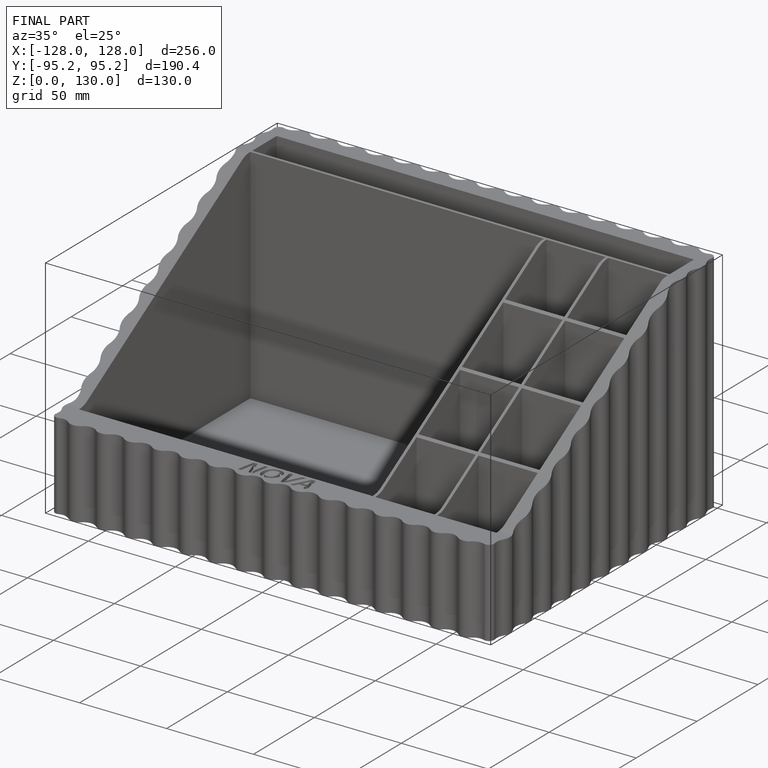
[diagram: finished part — iso view with bounding-box wireframe]
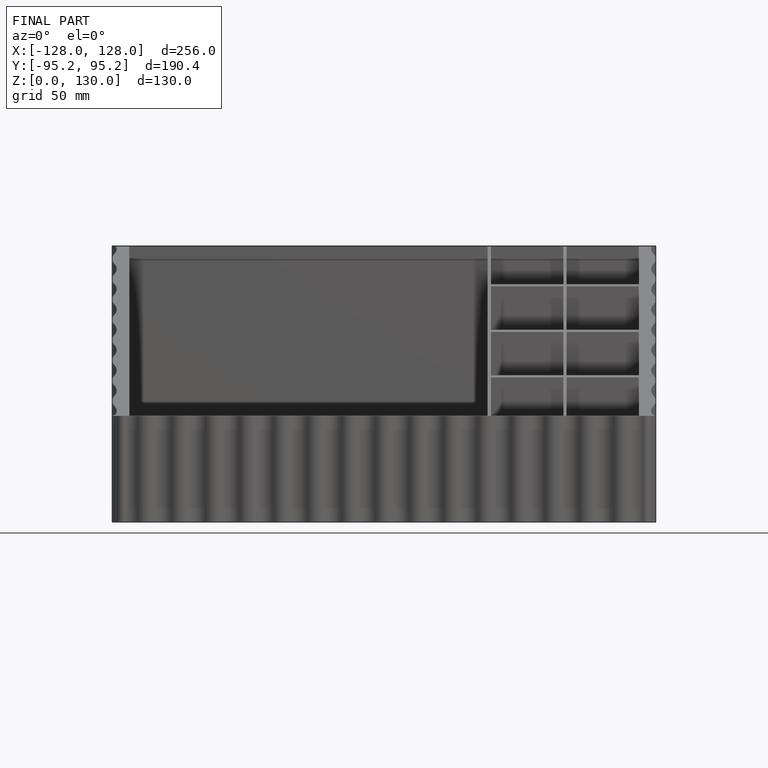
[diagram: finished part — front view with bounding-box wireframe]
